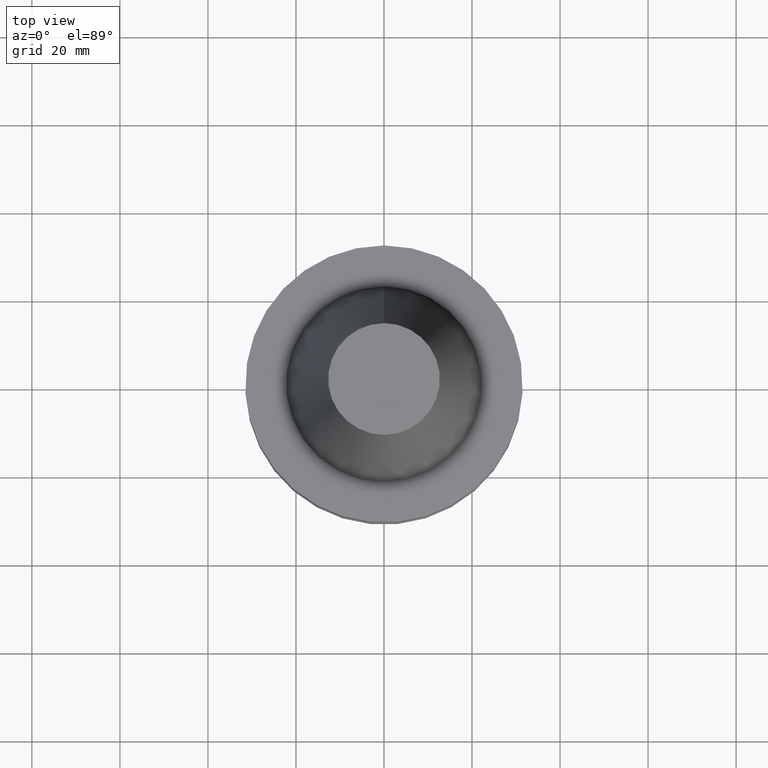
[diagram: clean part render]
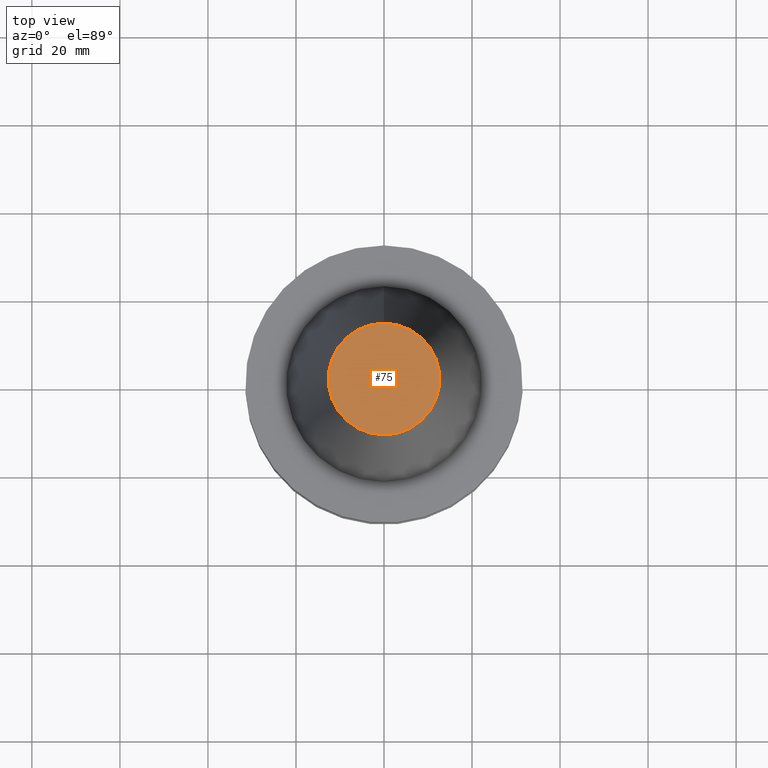
[diagram: same view with one face highlighted and labeled with its STEP entity id]
A machine part, top view. The second image highlights one B-rep face of the part: STEP entity #75.
In plain terms, the highlighted planar face has unit normal (-0, -0, 1).
Its self-contained STEP definition (entity closure, byte-faithful):
#75=ADVANCED_FACE('',(#94),#95,.T.);
#94=FACE_OUTER_BOUND('',#146,.T.);
#95=PLANE('',#147);
#146=EDGE_LOOP('',(#198));
#147=AXIS2_PLACEMENT_3D('',#199,#200,#201);
#198=ORIENTED_EDGE('',*,*,#286,.F.);
#199=CARTESIAN_POINT('',(-4.00459503321182E-015,6.34378157960899,65.3999999999996));
#200=DIRECTION('',(-6.12323399573677E-017,-1.22464679914735E-016,1.0));
#201=DIRECTION('',(1.23259516440783E-032,-1.0,-1.22464679914735E-016));
#286=EDGE_CURVE('',#303,#303,#304,.T.);
#303=VERTEX_POINT('',#337);
#304=CIRCLE('',#338,12.687563159218);
#337=CARTESIAN_POINT('',(-4.00459503321182E-015,12.687563159218,65.3999999999996));
#338=AXIS2_PLACEMENT_3D('',#371,#372,#373);
#371=CARTESIAN_POINT('',(-4.00459503321182E-015,-8.00919006642364E-015,65.3999999999996));
#372=DIRECTION('',(6.12323399573677E-017,1.22464679914735E-016,-1.0));
#373=DIRECTION('',(-1.23259516440783E-032,1.0,1.22464679914735E-016));